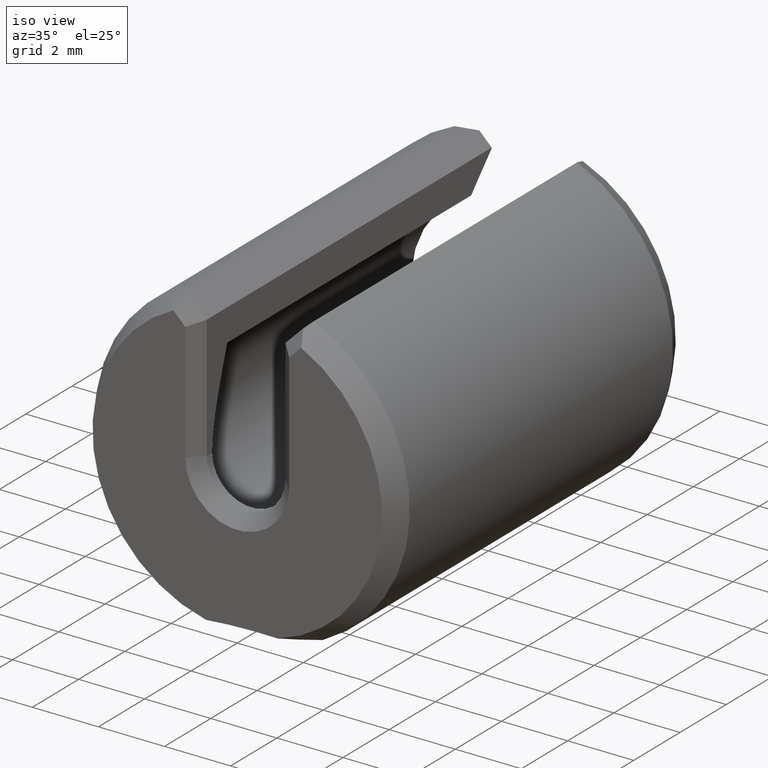
[diagram: clean part render]
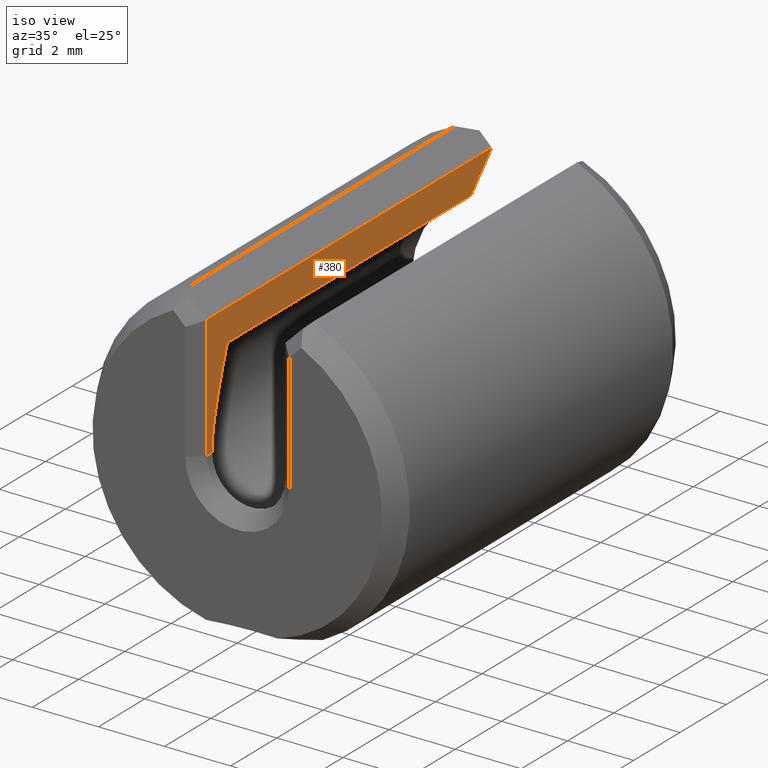
[diagram: same view with one face highlighted and labeled with its STEP entity id]
A machine part, iso view. The second image highlights one B-rep face of the part: STEP entity #380.
In plain terms, the highlighted planar face has unit normal (-1, 0, 0).
Its self-contained STEP definition (entity closure, byte-faithful):
#19 = CARTESIAN_POINT ( 'NONE',  ( -0.04687500000000000700, 0.5000000000000000000, 0.1457582889941046700 ) ) ;
#26 = VECTOR ( 'NONE', #612, 39.37007874015748100 ) ;
#38 = DIRECTION ( 'NONE',  ( -0.0000000000000000000, -0.0000000000000000000, -1.000000000000000000 ) ) ;
#39 = CARTESIAN_POINT ( 'NONE',  ( -0.04687500000000000700, 0.5000000000000000000, 0.0000000000000000000 ) ) ;
#58 = ORIENTED_EDGE ( 'NONE', *, *, #583, .T. ) ;
#59 = ORIENTED_EDGE ( 'NONE', *, *, #584, .T. ) ;
#60 = ORIENTED_EDGE ( 'NONE', *, *, #580, .F. ) ;
#61 = ORIENTED_EDGE ( 'NONE', *, *, #574, .F. ) ;
#62 = ORIENTED_EDGE ( 'NONE', *, *, #579, .F. ) ;
#63 = ORIENTED_EDGE ( 'NONE', *, *, #585, .T. ) ;
#64 = ORIENTED_EDGE ( 'NONE', *, *, #558, .F. ) ;
#108 = VECTOR ( 'NONE', #617, 39.37007874015748100 ) ;
#109 = LINE ( 'NONE', #607, #108 ) ;
#110 = LINE ( 'NONE', #611, #26 ) ;
#122 = VECTOR ( 'NONE', #38, 39.37007874015748100 ) ;
#125 = LINE ( 'NONE', #39, #122 ) ;
#140 = VECTOR ( 'NONE', #544, 39.37007874015748100 ) ;
#141 = VECTOR ( 'NONE', #647, 39.37007874015748100 ) ;
#142 = LINE ( 'NONE', #621, #140 ) ;
#145 = LINE ( 'NONE', #630, #141 ) ;
#209 = CARTESIAN_POINT ( 'NONE',  ( -0.04687500000000000700, 0.05000000000000001000, 0.1084101576193659500 ) ) ;
#271 = CARTESIAN_POINT ( 'NONE',  ( -0.04687500000000000700, 0.4649999999999997500, 0.1084101576193659500 ) ) ;
#275 = CARTESIAN_POINT ( 'NONE',  ( -0.04687500000000000700, 0.02407249438482643400, 0.0000000000000000000 ) ) ;
#276 = CARTESIAN_POINT ( 'NONE',  ( -0.04687500000000000700, 0.01499999999999997700, 0.0000000000000000000 ) ) ;
#330 = CARTESIAN_POINT ( 'NONE',  ( -0.04687500000000000700, 0.05000000000000001000, 0.1084101576193659500 ) ) ;
#339 = CARTESIAN_POINT ( 'NONE',  ( -0.04687500000000000700, 0.01499999999999997700, 0.1465460943534724600 ) ) ;
#349 = CARTESIAN_POINT ( 'NONE',  ( -0.04687500000000000700, 0.5000000000000000000, 0.1465460943534724600 ) ) ;
#351 = CARTESIAN_POINT ( 'NONE',  ( -0.04687500000000000700, 0.5000000000000000000, 0.1457582889941046700 ) ) ;
#365 = DIRECTION ( 'NONE',  ( 0.0000000000000000000, 0.0000000000000000000, 1.000000000000000000 ) ) ;
#366 = DIRECTION ( 'NONE',  ( -1.000000000000000000, 0.0000000000000000000, 0.0000000000000000000 ) ) ;
#374 = PLANE ( 'NONE',  #532 ) ;
#375 = CARTESIAN_POINT ( 'NONE',  ( -0.04687500000000000700, 0.5000000000000000000, 0.0000000000000000000 ) ) ;
#380 = ADVANCED_FACE ( 'NONE', ( #419 ), #374, .F. ) ;
#419 = FACE_OUTER_BOUND ( 'NONE', #713, .T. ) ;
#421 = VERTEX_POINT ( 'NONE', #349 ) ;
#427 = VERTEX_POINT ( 'NONE', #351 ) ;
#431 = VERTEX_POINT ( 'NONE', #339 ) ;
#437 = VERTEX_POINT ( 'NONE', #330 ) ;
#448 = VERTEX_POINT ( 'NONE', #276 ) ;
#449 = VERTEX_POINT ( 'NONE', #275 ) ;
#452 = VERTEX_POINT ( 'NONE', #271 ) ;
#485 = B_SPLINE_CURVE_WITH_KNOTS ( 'NONE', 3,
 ( #616, #618, #613, #19 ),
 .UNSPECIFIED., .F., .F.,
 ( 4, 4 ),
 ( 0.0000000000000000000, 0.001300093713103374300 ),
 .UNSPECIFIED. ) ;
#490 = B_SPLINE_CURVE_WITH_KNOTS ( 'NONE', 3,
 ( #209, #645, #642, #637, #633, #628, #627, #622, #620, #650 ),
 .UNSPECIFIED., .F., .F.,
 ( 4, 2, 2, 2, 4 ),
 ( 0.003561892994340673300, 0.004975565355306492100, 0.005682401535789400800, 0.006035819626030855200, 0.006389237716272308700 ),
 .UNSPECIFIED. ) ;
#532 = AXIS2_PLACEMENT_3D ( 'NONE', #375, #366, #365 ) ;
#544 = DIRECTION ( 'NONE',  ( -0.0000000000000000000, -1.000000000000000000, -0.0000000000000000000 ) ) ;
#558 = EDGE_CURVE ( 'NONE', #421, #427, #125, .T. ) ;
#574 = EDGE_CURVE ( 'NONE', #437, #449, #490, .T. ) ;
#579 = EDGE_CURVE ( 'NONE', #452, #437, #145, .T. ) ;
#580 = EDGE_CURVE ( 'NONE', #449, #448, #142, .T. ) ;
#583 = EDGE_CURVE ( 'NONE', #421, #431, #109, .T. ) ;
#584 = EDGE_CURVE ( 'NONE', #431, #448, #110, .T. ) ;
#585 = EDGE_CURVE ( 'NONE', #452, #427, #485, .T. ) ;
#607 = CARTESIAN_POINT ( 'NONE',  ( -0.04687500000000000700, 0.5000000000000000000, 0.1465460943534724600 ) ) ;
#611 = CARTESIAN_POINT ( 'NONE',  ( -0.04687500000000000700, 0.01499999999999997700, 0.0000000000000000000 ) ) ;
#612 = DIRECTION ( 'NONE',  ( 0.0000000000000000000, 0.0000000000000000000, -1.000000000000000000 ) ) ;
#613 = CARTESIAN_POINT ( 'NONE',  ( -0.04687500000000000700, 0.4882355998823115200, 0.1334005006759097800 ) ) ;
#616 = CARTESIAN_POINT ( 'NONE',  ( -0.04687500000000000700, 0.4649999999999997500, 0.1084101576193659500 ) ) ;
#617 = DIRECTION ( 'NONE',  ( 0.0000000000000000000, -1.000000000000000000, 0.0000000000000000000 ) ) ;
#618 = CARTESIAN_POINT ( 'NONE',  ( -0.04687500000000000700, 0.4765377943818935300, 0.1209803046409517600 ) ) ;
#620 = CARTESIAN_POINT ( 'NONE',  ( -0.04687499999999999300, 0.02407249438482603500, 0.004746837269420560800 ) ) ;
#621 = CARTESIAN_POINT ( 'NONE',  ( -0.04687500000000000700, 0.5000000000000000000, 0.0000000000000000000 ) ) ;
#622 = CARTESIAN_POINT ( 'NONE',  ( -0.04687500000000002100, 0.02434545063067179000, 0.009544206089615954800 ) ) ;
#627 = CARTESIAN_POINT ( 'NONE',  ( -0.04687500000000000700, 0.02534019039901204400, 0.01894417087558227700 ) ) ;
#628 = CARTESIAN_POINT ( 'NONE',  ( -0.04687500000000001400, 0.02605533119226621800, 0.02357704669839769800 ) ) ;
#630 = CARTESIAN_POINT ( 'NONE',  ( -0.04687500000000000700, 0.5000000000000000000, 0.1084101576193659500 ) ) ;
#633 = CARTESIAN_POINT ( 'NONE',  ( -0.04687500000000001400, 0.02863562111542185600, 0.03734166880571871500 ) ) ;
#637 = CARTESIAN_POINT ( 'NONE',  ( -0.04687500000000000700, 0.03091141296909432500, 0.04634687465894029400 ) ) ;
#642 = CARTESIAN_POINT ( 'NONE',  ( -0.04687500000000000700, 0.03835849371793918100, 0.07317152874306474800 ) ) ;
#645 = CARTESIAN_POINT ( 'NONE',  ( -0.04687500000000002100, 0.04411988044865892300, 0.09080913706718882200 ) ) ;
#647 = DIRECTION ( 'NONE',  ( 0.0000000000000000000, -1.000000000000000000, 0.0000000000000000000 ) ) ;
#650 = CARTESIAN_POINT ( 'NONE',  ( -0.04687500000000000700, 0.02407249438482643400, 0.0000000000000000000 ) ) ;
#713 = EDGE_LOOP ( 'NONE', ( #58, #59, #60, #61, #62, #63, #64 ) ) ;